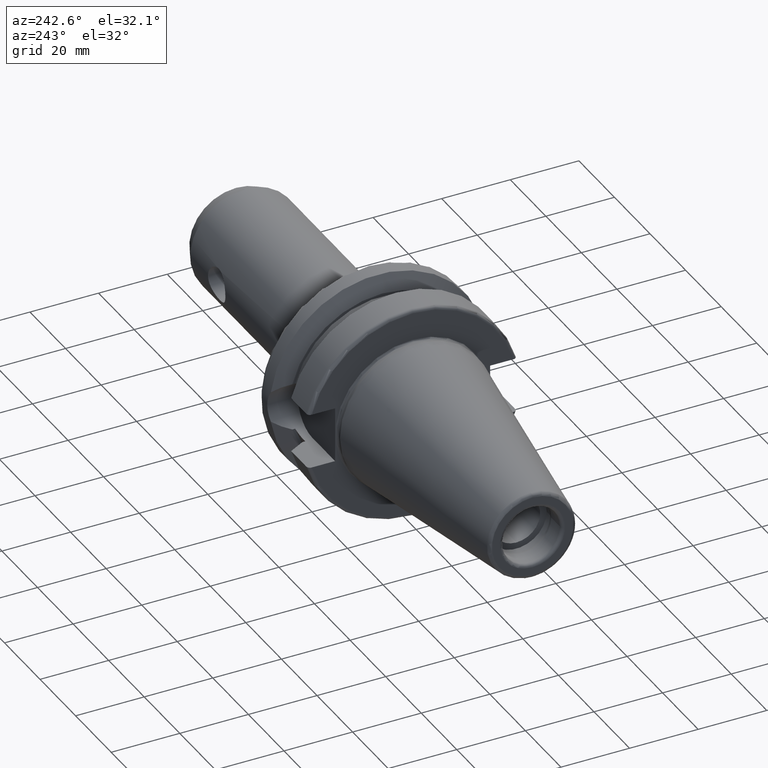
[diagram: clean part render]
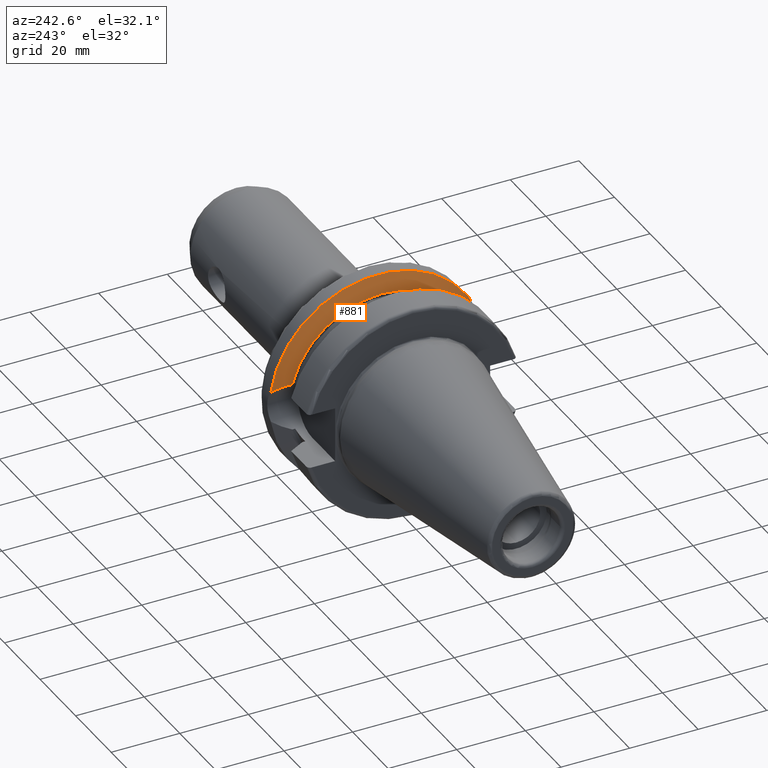
[diagram: same view with one face highlighted and labeled with its STEP entity id]
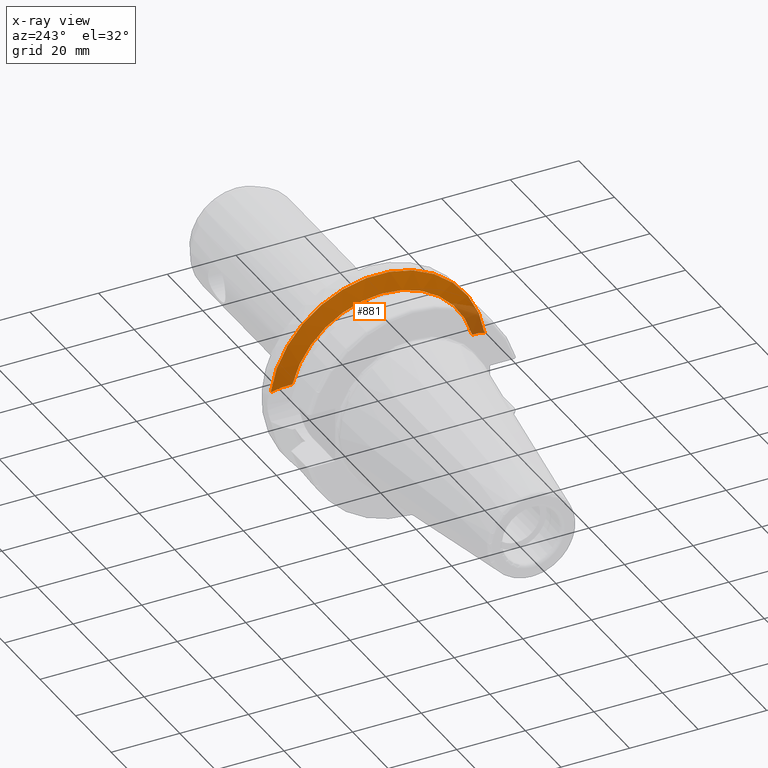
[diagram: x-ray of the same camera — body ghosted, the highlighted face saturated]
A machine part, auxiliary view. The second image highlights one B-rep face of the part: STEP entity #881.
The next image is the same camera in x-ray: the body ghosted, the highlighted face saturated — about 9% of this face is hidden behind the body in this view.
In plain terms, the highlighted conical surface has half-angle 60.125 deg.
Its self-contained STEP definition (entity closure, byte-faithful):
#23=CONICAL_SURFACE('',#994,29.2970358274569,1.0493792127616);
#37=B_SPLINE_CURVE_WITH_KNOTS('',3,(#1508,#1509,#1510,#1511,#1512,#1513),
 .UNSPECIFIED.,.F.,.F.,(4,2,4),(1.46421027899563,1.54570476603974,2.04294020568402),
 .UNSPECIFIED.);
#46=B_SPLINE_CURVE_WITH_KNOTS('',3,(#1667,#1668,#1669,#1670,#1671,#1672),
 .UNSPECIFIED.,.F.,.F.,(4,2,4),(3.12975744792551,3.6269928875698,3.7084873746139),
 .UNSPECIFIED.);
#212=FACE_OUTER_BOUND('',#270,.T.);
#270=EDGE_LOOP('',(#749,#750,#751,#752));
#321=CIRCLE('',#973,31.5);
#331=CIRCLE('',#995,27.0940716549138);
#387=VERTEX_POINT('',#1500);
#388=VERTEX_POINT('',#1507);
#408=VERTEX_POINT('',#1587);
#421=VERTEX_POINT('',#1665);
#486=EDGE_CURVE('',#388,#387,#37,.T.);
#511=EDGE_CURVE('',#408,#387,#321,.T.);
#533=EDGE_CURVE('',#408,#421,#46,.T.);
#544=EDGE_CURVE('',#421,#388,#331,.T.);
#749=ORIENTED_EDGE('',*,*,#486,.T.);
#750=ORIENTED_EDGE('',*,*,#511,.F.);
#751=ORIENTED_EDGE('',*,*,#533,.T.);
#752=ORIENTED_EDGE('',*,*,#544,.T.);
#881=ADVANCED_FACE('',(#212),#23,.T.);
#973=AXIS2_PLACEMENT_3D('',#1598,#1163,#1164);
#994=AXIS2_PLACEMENT_3D('',#1704,#1220,#1221);
#995=AXIS2_PLACEMENT_3D('',#1705,#1222,#1223);
#1163=DIRECTION('center_axis',(1.,0.,0.));
#1164=DIRECTION('ref_axis',(0.,0.,-1.));
#1220=DIRECTION('center_axis',(1.,0.,0.));
#1221=DIRECTION('ref_axis',(0.,1.,0.));
#1222=DIRECTION('center_axis',(1.,0.,0.));
#1223=DIRECTION('ref_axis',(0.,0.,-1.));
#1500=CARTESIAN_POINT('',(21.6309636926618,-31.1782420264945,4.49079326370462));
#1507=CARTESIAN_POINT('',(19.1,-26.201311395455,6.89782574439221));
#1508=CARTESIAN_POINT('Ctrl Pts',(19.1,-26.201311395455,6.89782574439221));
#1509=CARTESIAN_POINT('Ctrl Pts',(19.2210929544554,-26.438473693351,6.82497151762397));
#1510=CARTESIAN_POINT('Ctrl Pts',(19.3406963650696,-26.6728819297427,6.74867108656043));
#1511=CARTESIAN_POINT('Ctrl Pts',(20.1784155384866,-28.3157123387483,6.1823136897693));
#1512=CARTESIAN_POINT('Ctrl Pts',(20.9728756148302,-29.8797957262938,5.46983244373119));
#1513=CARTESIAN_POINT('Ctrl Pts',(21.6309636926618,-31.1782420264945,4.49079326370462));
#1587=CARTESIAN_POINT('',(21.6309636926618,31.1782420264945,4.49079326370462));
#1598=CARTESIAN_POINT('Origin',(21.6309636926618,0.,0.));
#1665=CARTESIAN_POINT('',(19.1,26.201311395455,6.89782574439221));
#1667=CARTESIAN_POINT('Ctrl Pts',(21.6309636926618,31.1782420264945,4.49079326370461));
#1668=CARTESIAN_POINT('Ctrl Pts',(20.9728756148302,29.8797957262938,5.46983244373119));
#1669=CARTESIAN_POINT('Ctrl Pts',(20.1784155384866,28.3157123387483,6.1823136897693));
#1670=CARTESIAN_POINT('Ctrl Pts',(19.3406963650696,26.6728819297427,6.74867108656043));
#1671=CARTESIAN_POINT('Ctrl Pts',(19.2210929544554,26.438473693351,6.82497151762397));
#1672=CARTESIAN_POINT('Ctrl Pts',(19.1,26.201311395455,6.89782574439222));
#1704=CARTESIAN_POINT('Origin',(20.3654818463309,0.,0.));
#1705=CARTESIAN_POINT('Origin',(19.1,0.,0.));